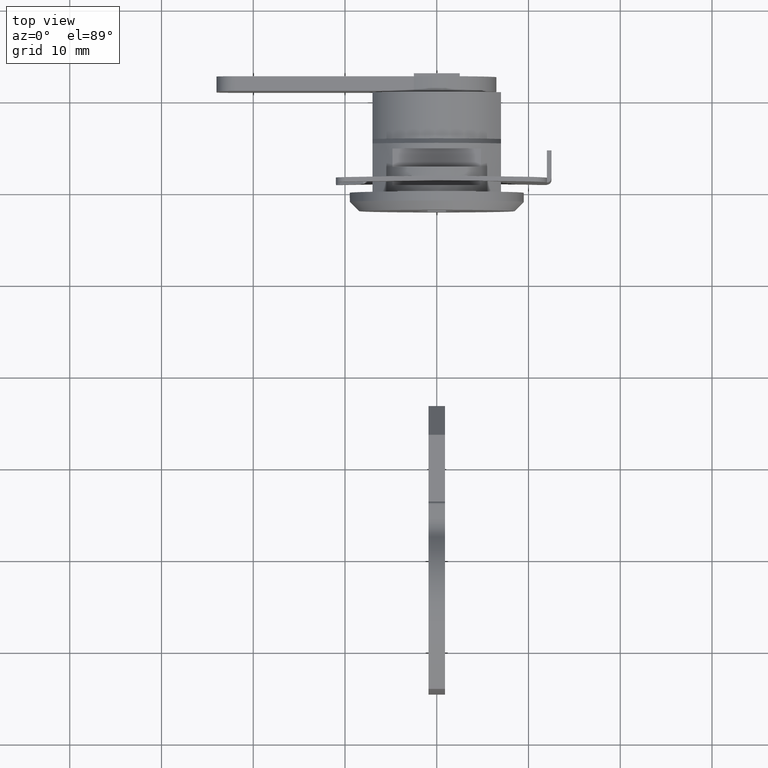
[diagram: clean part render]
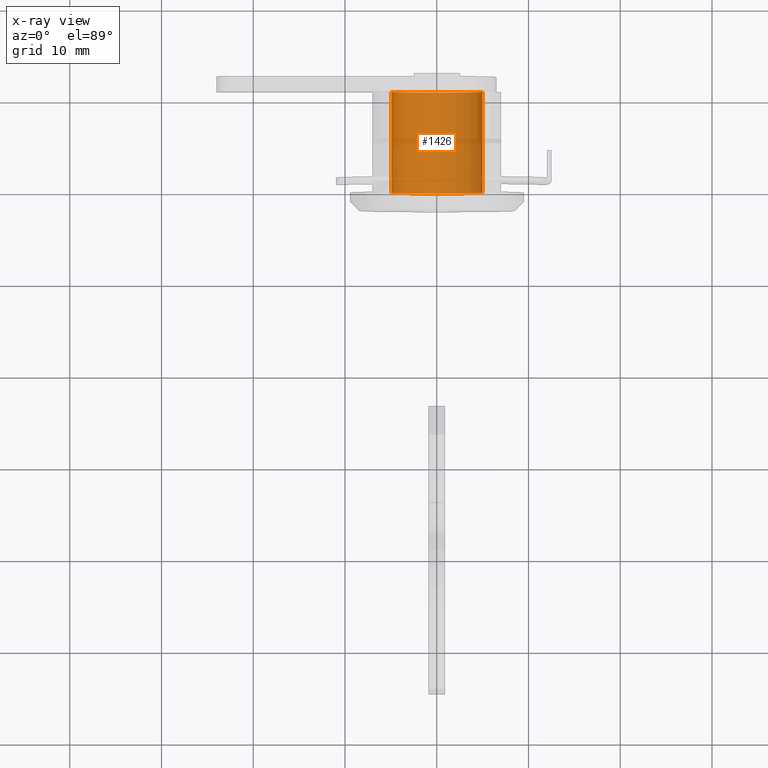
[diagram: x-ray — body ghosted, one internal face saturated and labeled with its STEP entity id]
A machine part, top view, then the same camera in x-ray: the body is ghosted and one INTERNAL B-rep face — a face not visible from any outside direction — is saturated and labeled: STEP entity #1426.
In plain terms, the highlighted face is a freeform B-spline surface patch.
Its self-contained STEP definition (entity closure, byte-faithful):
#1324=CARTESIAN_POINT('',(11.275000000000128,4.965047631818332,0.590171173283792));
#1325=CARTESIAN_POINT('',(11.275000000000130,4.981938077243028,0.448073643189888));
#1326=CARTESIAN_POINT('',(11.275000000000130,4.990673992109334,0.305242697674285));
#1327=CARTESIAN_POINT('',(11.275000000000125,5.295916689783620,-4.685431294435048));
#1328=CARTESIAN_POINT('',(11.275000000000130,0.305242697674285,-4.990673992109334));
#1329=CARTESIAN_POINT('',(11.275000000000125,-4.685431294435048,-5.295916689783620));
#1330=CARTESIAN_POINT('',(11.275000000000130,-4.990673992109334,-0.305242697674285));
#1331=CARTESIAN_POINT('',(-0.281875000000003,4.965047631818332,0.590171173283792));
#1332=CARTESIAN_POINT('',(-0.281875000000003,4.981938077243028,0.448073643189888));
#1333=CARTESIAN_POINT('',(-0.281875000000003,4.990673992109334,0.305242697674285));
#1334=CARTESIAN_POINT('',(-0.281875000000003,5.295916689783620,-4.685431294435048));
#1335=CARTESIAN_POINT('',(-0.281875000000003,0.305242697674285,-4.990673992109334));
#1336=CARTESIAN_POINT('',(-0.281875000000003,-4.685431294435048,-5.295916689783620));
#1337=CARTESIAN_POINT('',(-0.281875000000003,-4.990673992109334,-0.305242697674285));
#1345=(BOUNDED_SURFACE()B_SPLINE_SURFACE(2,1,((#1324,#1331),(#1325,#1332),(#1326,#1333),(#1327,#1334),(#1328,#1335),(#1329,#1336),(#1330,#1337)),.UNSPECIFIED.,.F.,.F.,.U.)B_SPLINE_SURFACE_WITH_KNOTS((3,2,2,3),(2,2),(0.0,0.331370849898476,8.615642097360375,16.899913344822270),(0.0,11.556875000000129),.UNSPECIFIED.)GEOMETRIC_REPRESENTATION_ITEM()RATIONAL_B_SPLINE_SURFACE(((0.977505800795127,0.977505800795127),(0.988284271247462,0.988284271247462),(1.0,1.0),(0.707106781186548,0.707106781186548),(1.0,1.0),(0.707106781186548,0.707106781186548),(1.0,1.0)))REPRESENTATION_ITEM('')SURFACE());
#1346=CARTESIAN_POINT('',(-4.259142E-016,4.965047631816127,0.590171173302341));
#1347=VERTEX_POINT('',#1346);
#1348=CARTESIAN_POINT('',(0.0,0.0,-5.0));
#1349=VERTEX_POINT('',#1348);
#1350=CARTESIAN_POINT('',(-4.259142E-016,4.965047631816127,0.590171173302341));
#1351=CARTESIAN_POINT('',(0.0,5.0,0.296120598278296));
#1352=CARTESIAN_POINT('',(0.0,5.0,-3.944305E-031));
#1353=CARTESIAN_POINT('',(0.0,5.000000000000001,-5.000000000000001));
#1354=CARTESIAN_POINT('',(0.0,0.0,-5.0));
#1362=(BOUNDED_CURVE()B_SPLINE_CURVE(2,(#1350,#1351,#1352,#1353,#1354),.UNSPECIFIED.,.F.,.U.)B_SPLINE_CURVE_WITH_KNOTS((3,2,3),(0.229562473514381,0.250000000000000,0.500000000000000),.UNSPECIFIED.)CURVE()GEOMETRIC_REPRESENTATION_ITEM()RATIONAL_B_SPLINE_CURVE((0.956026754185411,0.976055948332168,1.0,0.707106781186548,1.0))REPRESENTATION_ITEM(''));
#1363=EDGE_CURVE('',#1347,#1349,#1362,.T.);
#1364=ORIENTED_EDGE('',*,*,#1363,.F.);
#1365=CARTESIAN_POINT('',(11.000000000000121,4.965047631816127,0.590171173302341));
#1366=VERTEX_POINT('',#1365);
#1367=CARTESIAN_POINT('',(11.000000000000121,4.965047631816127,0.590171173302341));
#1368=CARTESIAN_POINT('',(-4.259142E-016,4.965047631816127,0.590171173302341));
#1369=QUASI_UNIFORM_CURVE('',1,(#1367,#1368),.UNSPECIFIED.,.F.,.U.);
#1370=EDGE_CURVE('',#1366,#1347,#1369,.T.);
#1371=ORIENTED_EDGE('',*,*,#1370,.F.);
#1372=CARTESIAN_POINT('',(11.000000000000121,0.0,-5.0));
#1373=VERTEX_POINT('',#1372);
#1374=CARTESIAN_POINT('',(11.000000000000117,4.965047631816127,0.590171173302341));
#1375=CARTESIAN_POINT('',(11.000000000000114,5.0,0.296120598278296));
#1376=CARTESIAN_POINT('',(11.000000000000121,5.0,-3.944305E-031));
#1377=CARTESIAN_POINT('',(11.000000000000119,5.000000000000001,-5.000000000000001));
#1378=CARTESIAN_POINT('',(11.000000000000121,0.0,-5.0));
#1386=(BOUNDED_CURVE()B_SPLINE_CURVE(2,(#1374,#1375,#1376,#1377,#1378),.UNSPECIFIED.,.F.,.U.)B_SPLINE_CURVE_WITH_KNOTS((3,2,3),(0.229562473514381,0.250000000000000,0.500000000000000),.UNSPECIFIED.)CURVE()GEOMETRIC_REPRESENTATION_ITEM()RATIONAL_B_SPLINE_CURVE((0.956026754185411,0.976055948332168,1.0,0.707106781186548,1.0))REPRESENTATION_ITEM(''));
#1387=EDGE_CURVE('',#1366,#1373,#1386,.T.);
#1388=ORIENTED_EDGE('',*,*,#1387,.T.);
#1389=CARTESIAN_POINT('',(11.000000000000121,-4.990673992103899,-0.305242697763157));
#1390=VERTEX_POINT('',#1389);
#1391=CARTESIAN_POINT('',(11.000000000000121,0.0,-5.0));
#1392=CARTESIAN_POINT('',(11.000000000000119,-4.703530334360647,-4.999999999999999));
#1393=CARTESIAN_POINT('',(11.000000000000117,-4.990673992103900,-0.305242697763157));
#1401=(BOUNDED_CURVE()B_SPLINE_CURVE(2,(#1391,#1392,#1393),.UNSPECIFIED.,.F.,.U.)B_SPLINE_CURVE_WITH_KNOTS((3,3),(0.500000000000000,0.739332962235823),.UNSPECIFIED.)CURVE()GEOMETRIC_REPRESENTATION_ITEM()RATIONAL_B_SPLINE_CURVE((1.0,0.719603993290365,0.976072041660031))REPRESENTATION_ITEM(''));
#1402=EDGE_CURVE('',#1373,#1390,#1401,.T.);
#1403=ORIENTED_EDGE('',*,*,#1402,.T.);
#1404=CARTESIAN_POINT('',(-4.718448E-016,-4.990673992103899,-0.305242697763157));
#1405=VERTEX_POINT('',#1404);
#1406=CARTESIAN_POINT('',(11.000000000000121,-4.990673992103899,-0.305242697763157));
#1407=CARTESIAN_POINT('',(-4.718448E-016,-4.990673992103899,-0.305242697763157));
#1408=QUASI_UNIFORM_CURVE('',1,(#1406,#1407),.UNSPECIFIED.,.F.,.U.);
#1409=EDGE_CURVE('',#1390,#1405,#1408,.T.);
#1410=ORIENTED_EDGE('',*,*,#1409,.T.);
#1411=CARTESIAN_POINT('',(0.0,0.0,-5.0));
#1412=CARTESIAN_POINT('',(0.0,-4.703530334360647,-4.999999999999999));
#1413=CARTESIAN_POINT('',(-4.718448E-016,-4.990673992103900,-0.305242697763157));
#1421=(BOUNDED_CURVE()B_SPLINE_CURVE(2,(#1411,#1412,#1413),.UNSPECIFIED.,.F.,.U.)B_SPLINE_CURVE_WITH_KNOTS((3,3),(0.500000000000000,0.739332962235823),.UNSPECIFIED.)CURVE()GEOMETRIC_REPRESENTATION_ITEM()RATIONAL_B_SPLINE_CURVE((1.0,0.719603993290365,0.976072041660031))REPRESENTATION_ITEM(''));
#1422=EDGE_CURVE('',#1349,#1405,#1421,.T.);
#1423=ORIENTED_EDGE('',*,*,#1422,.F.);
#1424=EDGE_LOOP('',(#1364,#1371,#1388,#1403,#1410,#1423));
#1425=FACE_OUTER_BOUND('',#1424,.T.);
#1426=ADVANCED_FACE('',(#1425),#1345,.T.);